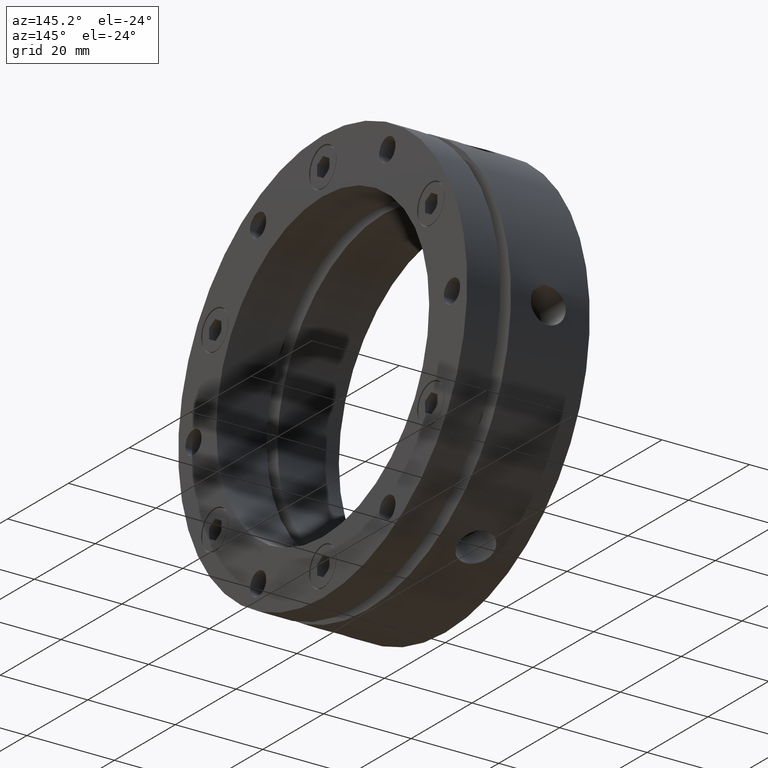
[diagram: clean part render]
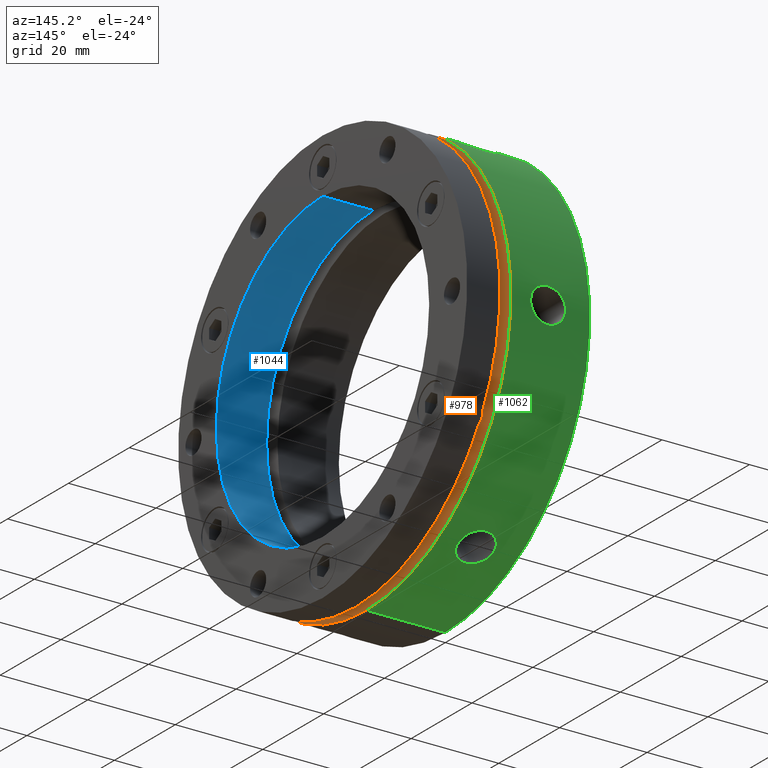
[diagram: same view with three faces highlighted in distinct colors, each labeled with its STEP entity id]
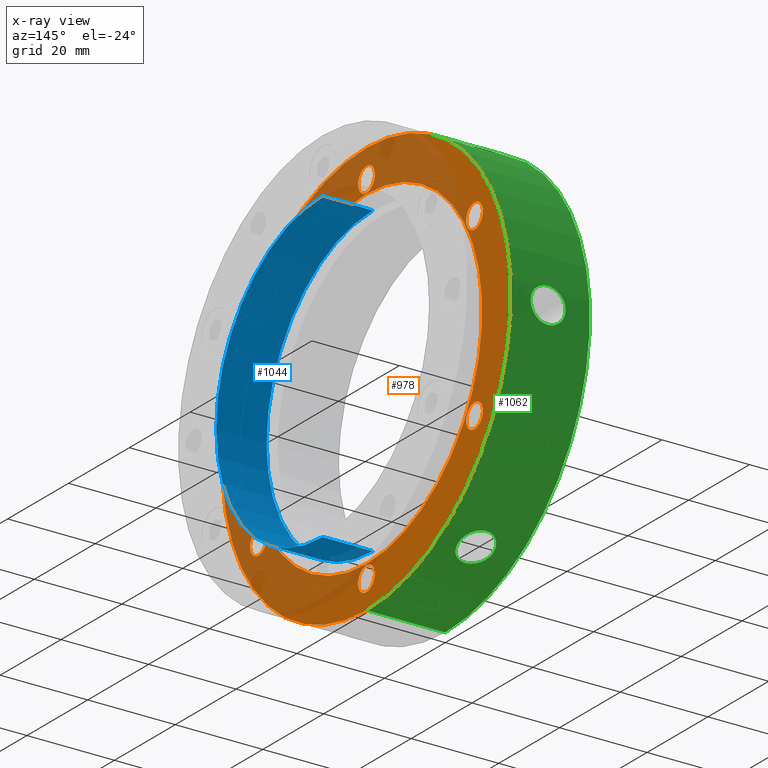
[diagram: x-ray of the same camera — body ghosted, the three highlighted faces saturated]
A machine part, auxiliary view with three faces highlighted in distinct colors.
The next image is the same camera in x-ray (body ghosted, the three faces saturated) — at least one of them is partly hidden behind the body in this view.
Their STEP definitions:

[orange] entity #978 — the highlighted planar face has unit normal (-1, 0, 0).
#38 = VERTEX_POINT ( 'NONE', #1382 ) ;
#66 = VERTEX_POINT ( 'NONE', #1390 ) ;
#86 = VERTEX_POINT ( 'NONE', #1411 ) ;
#109 = VERTEX_POINT ( 'NONE', #1425 ) ;
#114 = VERTEX_POINT ( 'NONE', #1433 ) ;
#121 = VERTEX_POINT ( 'NONE', #1442 ) ;
#158 = VERTEX_POINT ( 'NONE', #1468 ) ;
#159 = VERTEX_POINT ( 'NONE', #1469 ) ;
#184 = VERTEX_POINT ( 'NONE', #1493 ) ;
#188 = VERTEX_POINT ( 'NONE', #1497 ) ;
#218 = VERTEX_POINT ( 'NONE', #1526 ) ;
#248 = VERTEX_POINT ( 'NONE', #1553 ) ;
#250 = VERTEX_POINT ( 'NONE', #1555 ) ;
#253 = VERTEX_POINT ( 'NONE', #1550 ) ;
#262 = VERTEX_POINT ( 'NONE', #1566 ) ;
#268 = VERTEX_POINT ( 'NONE', #1571 ) ;
#338 = AXIS2_PLACEMENT_3D ( 'NONE', #2237, #2238, #2239 ) ;
#339 = AXIS2_PLACEMENT_3D ( 'NONE', #2228, #2229, #2230 ) ;
#402 = AXIS2_PLACEMENT_3D ( 'NONE', #3823, #3824, #3825 ) ;
#427 = AXIS2_PLACEMENT_3D ( 'NONE', #4002, #4003, #4004 ) ;
#430 = AXIS2_PLACEMENT_3D ( 'NONE', #4015, #4016, #4017 ) ;
#432 = AXIS2_PLACEMENT_3D ( 'NONE', #4055, #4056, #4057 ) ;
#434 = AXIS2_PLACEMENT_3D ( 'NONE', #4064, #4065, #4066 ) ;
#435 = AXIS2_PLACEMENT_3D ( 'NONE', #4102, #4103, #4104 ) ;
#436 = AXIS2_PLACEMENT_3D ( 'NONE', #4137, #4138, #4139 ) ;
#437 = AXIS2_PLACEMENT_3D ( 'NONE', #4141, #4142, #4143 ) ;
#472 = EDGE_CURVE ( 'NONE', #38, #159, #3421, .T. ) ;
#498 = EDGE_CURVE ( 'NONE', #253, #262, #2944, .T. ) ;
#504 = EDGE_CURVE ( 'NONE', #184, #188, #2951, .T. ) ;
#508 = EDGE_CURVE ( 'NONE', #250, #121, #2958, .T. ) ;
#512 = EDGE_CURVE ( 'NONE', #158, #86, #2963, .T. ) ;
#584 = EDGE_CURVE ( 'NONE', #268, #248, #3073, .T. ) ;
#588 = EDGE_CURVE ( 'NONE', #66, #114, #3082, .T. ) ;
#597 = ORIENTED_EDGE ( 'NONE', *, *, #4746, .F. ) ;
#817 = AXIS2_PLACEMENT_3D ( 'NONE', #2048, #2049, #2050 ) ;
#819 = AXIS2_PLACEMENT_3D ( 'NONE', #2037, #2038, #2039 ) ;
#821 = AXIS2_PLACEMENT_3D ( 'NONE', #2028, #2029, #2030 ) ;
#826 = AXIS2_PLACEMENT_3D ( 'NONE', #2015, #2016, #2017 ) ;
#838 = AXIS2_PLACEMENT_3D ( 'NONE', #2350, #2348, #2354 ) ;
#978 = ADVANCED_FACE ( 'NONE', ( #3148, #3156, #3152, #3150, #3154, #3157, #3158, #3159 ), #2352, .F. ) ;
#1382 = CARTESIAN_POINT ( 'NONE',  ( 17.99999999999999300, 35.50704155516203300, 23.24999999999998900 ) ) ;
#1390 = CARTESIAN_POINT ( 'NONE',  ( 17.99999999999999300, 35.50704155516199700, -17.75000000000003600 ) ) ;
#1411 = CARTESIAN_POINT ( 'NONE',  ( 17.99999999999999300, -35.50704155516201900, -23.25000000000000700 ) ) ;
#1425 = CARTESIAN_POINT ( 'NONE',  ( 17.99999999999999300, 5.817072295949928200E-015, 47.50000000000000000 ) ) ;
#1433 = CARTESIAN_POINT ( 'NONE',  ( 17.99999999999999300, 35.50704155516199700, -23.25000000000003600 ) ) ;
#1442 = CARTESIAN_POINT ( 'NONE',  ( 17.99999999999999300, -35.50704155516201200, 17.75000000000002100 ) ) ;
#1468 = CARTESIAN_POINT ( 'NONE',  ( 17.99999999999999300, -35.50704155516201900, -17.75000000000000700 ) ) ;
#1469 = CARTESIAN_POINT ( 'NONE',  ( 17.99999999999999300, 35.50704155516203300, 17.74999999999999300 ) ) ;
#1493 = CARTESIAN_POINT ( 'NONE',  ( 17.99999999999999300, 3.367778697655217600E-016, 43.75000000000002800 ) ) ;
#1497 = CARTESIAN_POINT ( 'NONE',  ( 17.99999999999999300, 0.0000000000000000000, 38.25000000000002800 ) ) ;
#1526 = CARTESIAN_POINT ( 'NONE',  ( 17.99999999999999300, 0.0000000000000000000, -47.50000000000000000 ) ) ;
#1550 = CARTESIAN_POINT ( 'NONE',  ( 17.99999999999999300, 4.653657836759942700E-015, -38.00000000000000700 ) ) ;
#1553 = CARTESIAN_POINT ( 'NONE',  ( 17.99999999999999300, -6.661337999999999900E-015, -43.75000000000002800 ) ) ;
#1555 = CARTESIAN_POINT ( 'NONE',  ( 17.99999999999999300, -35.50704155516201200, 23.25000000000002100 ) ) ;
#1566 = CARTESIAN_POINT ( 'NONE',  ( 17.99999999999999300, 0.0000000000000000000, 38.00000000000000700 ) ) ;
#1571 = CARTESIAN_POINT ( 'NONE',  ( 17.99999999999999300, -6.324560130234478200E-015, -38.25000000000002800 ) ) ;
#1595 = CARTESIAN_POINT ( 'NONE',  ( 17.99999999999999300, 35.50704155516203300, 20.49999999999998900 ) ) ;
#1596 = DIRECTION ( 'NONE',  ( 1.000000000000000000, 0.0000000000000000000, 0.0000000000000000000 ) ) ;
#1597 = DIRECTION ( 'NONE',  ( 0.0000000000000000000, 0.0000000000000000000, -1.000000000000000000 ) ) ;
#1784 = CIRCLE ( 'NONE', #1901, 47.50000000000000000 ) ;
#1901 = AXIS2_PLACEMENT_3D ( 'NONE', #2806, #2807, #2808 ) ;
#2015 = CARTESIAN_POINT ( 'NONE',  ( 17.99999999999999300, 0.0000000000000000000, 0.0000000000000000000 ) ) ;
#2016 = DIRECTION ( 'NONE',  ( 1.000000000000000000, -0.0000000000000000000, -0.0000000000000000000 ) ) ;
#2017 = DIRECTION ( 'NONE',  ( 0.0000000000000000000, 0.0000000000000000000, 1.000000000000000000 ) ) ;
#2028 = CARTESIAN_POINT ( 'NONE',  ( 17.99999999999999300, 0.0000000000000000000, 41.00000000000002800 ) ) ;
#2029 = DIRECTION ( 'NONE',  ( 1.000000000000000000, 0.0000000000000000000, 0.0000000000000000000 ) ) ;
#2030 = DIRECTION ( 'NONE',  ( 0.0000000000000000000, 0.0000000000000000000, -1.000000000000000000 ) ) ;
#2037 = CARTESIAN_POINT ( 'NONE',  ( 17.99999999999999300, -35.50704155516201200, 20.50000000000002100 ) ) ;
#2038 = DIRECTION ( 'NONE',  ( 1.000000000000000000, 0.0000000000000000000, 0.0000000000000000000 ) ) ;
#2039 = DIRECTION ( 'NONE',  ( 0.0000000000000000000, 0.0000000000000000000, -1.000000000000000000 ) ) ;
#2048 = CARTESIAN_POINT ( 'NONE',  ( 17.99999999999999300, -35.50704155516201900, -20.50000000000000700 ) ) ;
#2049 = DIRECTION ( 'NONE',  ( 1.000000000000000000, 0.0000000000000000000, 0.0000000000000000000 ) ) ;
#2050 = DIRECTION ( 'NONE',  ( 0.0000000000000000000, 0.0000000000000000000, -1.000000000000000000 ) ) ;
#2228 = CARTESIAN_POINT ( 'NONE',  ( 17.99999999999999300, -6.661337999999999900E-015, -41.00000000000002800 ) ) ;
#2229 = DIRECTION ( 'NONE',  ( 1.000000000000000000, 0.0000000000000000000, 0.0000000000000000000 ) ) ;
#2230 = DIRECTION ( 'NONE',  ( 0.0000000000000000000, 0.0000000000000000000, -1.000000000000000000 ) ) ;
#2237 = CARTESIAN_POINT ( 'NONE',  ( 17.99999999999999300, 35.50704155516199700, -20.50000000000003600 ) ) ;
#2238 = DIRECTION ( 'NONE',  ( 1.000000000000000000, 0.0000000000000000000, 0.0000000000000000000 ) ) ;
#2239 = DIRECTION ( 'NONE',  ( 0.0000000000000000000, 0.0000000000000000000, -1.000000000000000000 ) ) ;
#2348 = DIRECTION ( 'NONE',  ( -1.000000000000000000, 0.0000000000000000000, 0.0000000000000000000 ) ) ;
#2350 = CARTESIAN_POINT ( 'NONE',  ( 17.99999999999999300, 42.75000000000000000, 0.0000000000000000000 ) ) ;
#2352 = PLANE ( 'NONE',  #838 ) ;
#2354 = DIRECTION ( 'NONE',  ( 0.0000000000000000000, 0.0000000000000000000, 1.000000000000000000 ) ) ;
#2806 = CARTESIAN_POINT ( 'NONE',  ( 17.99999999999999300, 0.0000000000000000000, 0.0000000000000000000 ) ) ;
#2807 = DIRECTION ( 'NONE',  ( -1.000000000000000000, -0.0000000000000000000, -0.0000000000000000000 ) ) ;
#2808 = DIRECTION ( 'NONE',  ( 0.0000000000000000000, 0.0000000000000000000, -1.000000000000000000 ) ) ;
#2944 = CIRCLE ( 'NONE', #826, 38.00000000000000700 ) ;
#2951 = CIRCLE ( 'NONE', #821, 2.750000000000002700 ) ;
#2958 = CIRCLE ( 'NONE', #819, 2.749999999999999100 ) ;
#2963 = CIRCLE ( 'NONE', #817, 2.749999999999999100 ) ;
#3073 = CIRCLE ( 'NONE', #339, 2.750000000000002700 ) ;
#3082 = CIRCLE ( 'NONE', #338, 2.749999999999999100 ) ;
#3148 = FACE_BOUND ( 'NONE', #3350, .T. ) ;
#3150 = FACE_BOUND ( 'NONE', #3349, .T. ) ;
#3152 = FACE_BOUND ( 'NONE', #3363, .T. ) ;
#3154 = FACE_BOUND ( 'NONE', #3370, .T. ) ;
#3156 = FACE_BOUND ( 'NONE', #3362, .T. ) ;
#3157 = FACE_BOUND ( 'NONE', #3371, .T. ) ;
#3158 = FACE_BOUND ( 'NONE', #3372, .T. ) ;
#3159 = FACE_OUTER_BOUND ( 'NONE', #3373, .T. ) ;
#3349 = EDGE_LOOP ( 'NONE', ( #4602, #4557 ) ) ;
#3350 = EDGE_LOOP ( 'NONE', ( #597, #4593 ) ) ;
#3362 = EDGE_LOOP ( 'NONE', ( #4601, #4538 ) ) ;
#3363 = EDGE_LOOP ( 'NONE', ( #4554, #4550 ) ) ;
#3370 = EDGE_LOOP ( 'NONE', ( #4579, #4549 ) ) ;
#3371 = EDGE_LOOP ( 'NONE', ( #4541, #4598 ) ) ;
#3372 = EDGE_LOOP ( 'NONE', ( #4546, #4547 ) ) ;
#3373 = EDGE_LOOP ( 'NONE', ( #4543, #4548 ) ) ;
#3421 = CIRCLE ( 'NONE', #4673, 2.749999999999999100 ) ;
#3468 = EDGE_CURVE ( 'NONE', #218, #109, #1784, .T. ) ;
#3823 = CARTESIAN_POINT ( 'NONE',  ( 17.99999999999999300, 0.0000000000000000000, 0.0000000000000000000 ) ) ;
#3824 = DIRECTION ( 'NONE',  ( -1.000000000000000000, -0.0000000000000000000, -0.0000000000000000000 ) ) ;
#3825 = DIRECTION ( 'NONE',  ( 0.0000000000000000000, 0.0000000000000000000, -1.000000000000000000 ) ) ;
#4002 = CARTESIAN_POINT ( 'NONE',  ( 17.99999999999999300, 35.50704155516203300, 20.49999999999998900 ) ) ;
#4003 = DIRECTION ( 'NONE',  ( 1.000000000000000000, 0.0000000000000000000, 0.0000000000000000000 ) ) ;
#4004 = DIRECTION ( 'NONE',  ( 0.0000000000000000000, 0.0000000000000000000, -1.000000000000000000 ) ) ;
#4015 = CARTESIAN_POINT ( 'NONE',  ( 17.99999999999999300, 35.50704155516199700, -20.50000000000003600 ) ) ;
#4016 = DIRECTION ( 'NONE',  ( 1.000000000000000000, 0.0000000000000000000, 0.0000000000000000000 ) ) ;
#4017 = DIRECTION ( 'NONE',  ( 0.0000000000000000000, 0.0000000000000000000, -1.000000000000000000 ) ) ;
#4055 = CARTESIAN_POINT ( 'NONE',  ( 17.99999999999999300, 0.0000000000000000000, 41.00000000000002800 ) ) ;
#4056 = DIRECTION ( 'NONE',  ( 1.000000000000000000, 0.0000000000000000000, 0.0000000000000000000 ) ) ;
#4057 = DIRECTION ( 'NONE',  ( 0.0000000000000000000, 0.0000000000000000000, -1.000000000000000000 ) ) ;
#4064 = CARTESIAN_POINT ( 'NONE',  ( 17.99999999999999300, 0.0000000000000000000, 0.0000000000000000000 ) ) ;
#4065 = DIRECTION ( 'NONE',  ( 1.000000000000000000, -0.0000000000000000000, -0.0000000000000000000 ) ) ;
#4066 = DIRECTION ( 'NONE',  ( 0.0000000000000000000, 0.0000000000000000000, 1.000000000000000000 ) ) ;
#4102 = CARTESIAN_POINT ( 'NONE',  ( 17.99999999999999300, -6.661337999999999900E-015, -41.00000000000002800 ) ) ;
#4103 = DIRECTION ( 'NONE',  ( 1.000000000000000000, 0.0000000000000000000, 0.0000000000000000000 ) ) ;
#4104 = DIRECTION ( 'NONE',  ( 0.0000000000000000000, 0.0000000000000000000, -1.000000000000000000 ) ) ;
#4137 = CARTESIAN_POINT ( 'NONE',  ( 17.99999999999999300, -35.50704155516201200, 20.50000000000002100 ) ) ;
#4138 = DIRECTION ( 'NONE',  ( 1.000000000000000000, 0.0000000000000000000, 0.0000000000000000000 ) ) ;
#4139 = DIRECTION ( 'NONE',  ( 0.0000000000000000000, 0.0000000000000000000, -1.000000000000000000 ) ) ;
#4141 = CARTESIAN_POINT ( 'NONE',  ( 17.99999999999999300, -35.50704155516201900, -20.50000000000000700 ) ) ;
#4142 = DIRECTION ( 'NONE',  ( 1.000000000000000000, 0.0000000000000000000, 0.0000000000000000000 ) ) ;
#4143 = DIRECTION ( 'NONE',  ( 0.0000000000000000000, 0.0000000000000000000, -1.000000000000000000 ) ) ;
#4335 = CIRCLE ( 'NONE', #402, 47.50000000000000000 ) ;
#4353 = CIRCLE ( 'NONE', #432, 2.750000000000002700 ) ;
#4362 = CIRCLE ( 'NONE', #427, 2.749999999999999100 ) ;
#4365 = CIRCLE ( 'NONE', #430, 2.749999999999999100 ) ;
#4372 = CIRCLE ( 'NONE', #434, 38.00000000000000700 ) ;
#4374 = CIRCLE ( 'NONE', #435, 2.750000000000002700 ) ;
#4375 = CIRCLE ( 'NONE', #437, 2.749999999999999100 ) ;
#4377 = CIRCLE ( 'NONE', #436, 2.749999999999999100 ) ;
#4538 = ORIENTED_EDGE ( 'NONE', *, *, #504, .F. ) ;
#4541 = ORIENTED_EDGE ( 'NONE', *, *, #4739, .F. ) ;
#4543 = ORIENTED_EDGE ( 'NONE', *, *, #3468, .F. ) ;
#4546 = ORIENTED_EDGE ( 'NONE', *, *, #4736, .F. ) ;
#4547 = ORIENTED_EDGE ( 'NONE', *, *, #472, .F. ) ;
#4548 = ORIENTED_EDGE ( 'NONE', *, *, #4707, .F. ) ;
#4549 = ORIENTED_EDGE ( 'NONE', *, *, #584, .F. ) ;
#4550 = ORIENTED_EDGE ( 'NONE', *, *, #508, .F. ) ;
#4554 = ORIENTED_EDGE ( 'NONE', *, *, #4751, .F. ) ;
#4557 = ORIENTED_EDGE ( 'NONE', *, *, #512, .F. ) ;
#4579 = ORIENTED_EDGE ( 'NONE', *, *, #4748, .F. ) ;
#4593 = ORIENTED_EDGE ( 'NONE', *, *, #498, .F. ) ;
#4598 = ORIENTED_EDGE ( 'NONE', *, *, #588, .F. ) ;
#4601 = ORIENTED_EDGE ( 'NONE', *, *, #4743, .F. ) ;
#4602 = ORIENTED_EDGE ( 'NONE', *, *, #4752, .F. ) ;
#4673 = AXIS2_PLACEMENT_3D ( 'NONE', #1595, #1596, #1597 ) ;
#4707 = EDGE_CURVE ( 'NONE', #109, #218, #4335, .T. ) ;
#4736 = EDGE_CURVE ( 'NONE', #159, #38, #4362, .T. ) ;
#4739 = EDGE_CURVE ( 'NONE', #114, #66, #4365, .T. ) ;
#4743 = EDGE_CURVE ( 'NONE', #188, #184, #4353, .T. ) ;
#4746 = EDGE_CURVE ( 'NONE', #262, #253, #4372, .T. ) ;
#4748 = EDGE_CURVE ( 'NONE', #248, #268, #4374, .T. ) ;
#4751 = EDGE_CURVE ( 'NONE', #121, #250, #4377, .T. ) ;
#4752 = EDGE_CURVE ( 'NONE', #86, #158, #4375, .T. ) ;

[blue] entity #1044 — the highlighted cylindrical surface (partial cylindrical patch) has radius 35 mm, axis along (1, 0, 0).
#9 = EDGE_LOOP ( 'NONE', ( #1286, #1285, #1284, #1281 ) ) ;
#80 = VERTEX_POINT ( 'NONE', #1407 ) ;
#99 = VERTEX_POINT ( 'NONE', #1424 ) ;
#130 = VERTEX_POINT ( 'NONE', #1449 ) ;
#137 = VERTEX_POINT ( 'NONE', #1454 ) ;
#345 = AXIS2_PLACEMENT_3D ( 'NONE', #2192, #2193, #2194 ) ;
#346 = AXIS2_PLACEMENT_3D ( 'NONE', #2188, #2189, #2190 ) ;
#566 = EDGE_CURVE ( 'NONE', #137, #80, #3045, .T. ) ;
#568 = EDGE_CURVE ( 'NONE', #80, #130, #3050, .T. ) ;
#569 = EDGE_CURVE ( 'NONE', #99, #130, #3048, .T. ) ;
#570 = EDGE_CURVE ( 'NONE', #137, #99, #3052, .T. ) ;
#907 = AXIS2_PLACEMENT_3D ( 'NONE', #2557, #2555, #2553 ) ;
#1044 = ADVANCED_FACE ( 'NONE', ( #1671 ), #1675, .F. ) ;
#1281 = ORIENTED_EDGE ( 'NONE', *, *, #566, .F. ) ;
#1284 = ORIENTED_EDGE ( 'NONE', *, *, #568, .F. ) ;
#1285 = ORIENTED_EDGE ( 'NONE', *, *, #569, .T. ) ;
#1286 = ORIENTED_EDGE ( 'NONE', *, *, #570, .T. ) ;
#1407 = CARTESIAN_POINT ( 'NONE',  ( 27.99999999999999300, 0.0000000000000000000, -35.00000000000000000 ) ) ;
#1424 = CARTESIAN_POINT ( 'NONE',  ( 16.50000000000000000, 4.286263797015736500E-015, 35.00000000000000000 ) ) ;
#1449 = CARTESIAN_POINT ( 'NONE',  ( 27.99999999999999300, 4.286263797015736500E-015, 35.00000000000000000 ) ) ;
#1454 = CARTESIAN_POINT ( 'NONE',  ( 16.50000000000000000, 0.0000000000000000000, -35.00000000000000000 ) ) ;
#1671 = FACE_OUTER_BOUND ( 'NONE', #9, .T. ) ;
#1675 = CYLINDRICAL_SURFACE ( 'NONE', #907, 35.00000000000000000 ) ;
#2178 = DIRECTION ( 'NONE',  ( 1.000000000000000000, 0.0000000000000000000, 0.0000000000000000000 ) ) ;
#2180 = CARTESIAN_POINT ( 'NONE',  ( 13.99999999999999300, 0.0000000000000000000, -35.00000000000000000 ) ) ;
#2184 = DIRECTION ( 'NONE',  ( 1.000000000000000000, 0.0000000000000000000, 0.0000000000000000000 ) ) ;
#2187 = CARTESIAN_POINT ( 'NONE',  ( 13.99999999999999300, 4.286263797015736500E-015, 35.00000000000000000 ) ) ;
#2188 = CARTESIAN_POINT ( 'NONE',  ( 27.99999999999999300, 0.0000000000000000000, 0.0000000000000000000 ) ) ;
#2189 = DIRECTION ( 'NONE',  ( -1.000000000000000000, -0.0000000000000000000, -0.0000000000000000000 ) ) ;
#2190 = DIRECTION ( 'NONE',  ( 0.0000000000000000000, 0.0000000000000000000, -1.000000000000000000 ) ) ;
#2192 = CARTESIAN_POINT ( 'NONE',  ( 16.50000000000000000, 0.0000000000000000000, 0.0000000000000000000 ) ) ;
#2193 = DIRECTION ( 'NONE',  ( -1.000000000000000000, -0.0000000000000000000, -0.0000000000000000000 ) ) ;
#2194 = DIRECTION ( 'NONE',  ( 0.0000000000000000000, 0.0000000000000000000, -1.000000000000000000 ) ) ;
#2553 = DIRECTION ( 'NONE',  ( 0.0000000000000000000, 0.0000000000000000000, -1.000000000000000000 ) ) ;
#2555 = DIRECTION ( 'NONE',  ( 1.000000000000000000, 0.0000000000000000000, 0.0000000000000000000 ) ) ;
#2557 = CARTESIAN_POINT ( 'NONE',  ( 13.99999999999999300, 0.0000000000000000000, 0.0000000000000000000 ) ) ;
#3045 = LINE ( 'NONE', #2180, #3049 ) ;
#3048 = LINE ( 'NONE', #2187, #3054 ) ;
#3049 = VECTOR ( 'NONE', #2178, 1000.000000000000000 ) ;
#3050 = CIRCLE ( 'NONE', #346, 35.00000000000000000 ) ;
#3052 = CIRCLE ( 'NONE', #345, 35.00000000000000000 ) ;
#3054 = VECTOR ( 'NONE', #2184, 1000.000000000000000 ) ;

[green] entity #1062 — the highlighted cylindrical surface (partial cylindrical patch) has radius 47.5 mm, axis along (1, 0, 0).
#51 = ORIENTED_EDGE ( 'NONE', *, *, #4742, .T. ) ;
#54 = VERTEX_POINT ( 'NONE', #1385 ) ;
#63 = VERTEX_POINT ( 'NONE', #1393 ) ;
#84 = VERTEX_POINT ( 'NONE', #1410 ) ;
#107 = VERTEX_POINT ( 'NONE', #1432 ) ;
#109 = VERTEX_POINT ( 'NONE', #1425 ) ;
#139 = ORIENTED_EDGE ( 'NONE', *, *, #4724, .T. ) ;
#143 = ORIENTED_EDGE ( 'NONE', *, *, #4604, .F. ) ;
#156 = ORIENTED_EDGE ( 'NONE', *, *, #4707, .T. ) ;
#185 = VERTEX_POINT ( 'NONE', #1494 ) ;
#198 = ORIENTED_EDGE ( 'NONE', *, *, #4749, .T. ) ;
#214 = VERTEX_POINT ( 'NONE', #1522 ) ;
#217 = ORIENTED_EDGE ( 'NONE', *, *, #4708, .T. ) ;
#218 = VERTEX_POINT ( 'NONE', #1526 ) ;
#220 = ORIENTED_EDGE ( 'NONE', *, *, #4725, .T. ) ;
#224 = VERTEX_POINT ( 'NONE', #1525 ) ;
#225 = ORIENTED_EDGE ( 'NONE', *, *, #4750, .T. ) ;
#237 = VERTEX_POINT ( 'NONE', #1542 ) ;
#245 = ORIENTED_EDGE ( 'NONE', *, *, #4726, .T. ) ;
#259 = ORIENTED_EDGE ( 'NONE', *, *, #4747, .T. ) ;
#304 = EDGE_LOOP ( 'NONE', ( #51, #225 ) ) ;
#306 = EDGE_LOOP ( 'NONE', ( #217, #198, #156, #143 ) ) ;
#316 = EDGE_LOOP ( 'NONE', ( #139, #259 ) ) ;
#317 = EDGE_LOOP ( 'NONE', ( #245, #220 ) ) ;
#402 = AXIS2_PLACEMENT_3D ( 'NONE', #3823, #3824, #3825 ) ;
#403 = AXIS2_PLACEMENT_3D ( 'NONE', #3826, #3827, #3828 ) ;
#926 = AXIS2_PLACEMENT_3D ( 'NONE', #2610, #2611, #2609 ) ;
#1062 = ADVANCED_FACE ( 'NONE', ( #1707, #1715, #1711, #1709 ), #1719, .T. ) ;
#1090 = B_SPLINE_CURVE_WITH_KNOTS ( 'NONE', 3,
 ( #3877, #3910, #3943, #3944, #3945, #3946, #3947, #3948, #3949, #3950, #3951, #3952, #3953, #3954, #3955, #3956, #3957, #3958, #3959, #3960, #3961, #3962, #3963, #3964, #3965, #3966, #3967, #3968, #3969, #3970, #3971, #3972, #3973, #3974 ),
 .UNSPECIFIED., .F., .F.,
 ( 4, 2, 2, 2, 2, 2, 2, 2, 2, 2, 2, 2, 2, 2, 2, 2, 4 ),
 ( 0.01876578023979333000, 0.01954757151326307100, 0.02032936278673280700, 0.02111115406020255100, 0.02189294533367229200, 0.02267473660714203200, 0.02345652788061177600, 0.02423831915408151600, 0.02502011042755126000, 0.02580190170102100000, 0.02658369297449074400, 0.02736548424796048400, 0.02814727552143022500, 0.02892906679489996900, 0.02971085806836971200, 0.03049264934183945300, 0.03127444061530919300 ),
 .UNSPECIFIED. ) ;
#1091 = B_SPLINE_CURVE_WITH_KNOTS ( 'NONE', 3,
 ( #3872, #3873, #3878, #3879, #3880, #3881, #3882, #3883, #3884, #3885, #3886, #3887, #3888, #3889, #3890, #3891, #3892, #3893, #3894, #3895, #3896, #3897, #3898, #3899, #3900, #3901, #3902, #3903, #3904, #3905, #3906, #3907, #3908, #3909 ),
 .UNSPECIFIED., .F., .F.,
 ( 4, 2, 2, 2, 2, 2, 2, 2, 2, 2, 2, 2, 2, 2, 2, 2, 4 ),
 ( 0.01876578023979335100, 0.01954757151326309500, 0.02032936278673283900, 0.02111115406020258300, 0.02189294533367232300, 0.02267473660714206700, 0.02345652788061181000, 0.02423831915408155100, 0.02502011042755129100, 0.02580190170102103500, 0.02658369297449077500, 0.02736548424796051600, 0.02814727552143025900, 0.02892906679490000300, 0.02971085806836974400, 0.03049264934183948400, 0.03127444061530922800 ),
 .UNSPECIFIED. ) ;
#1096 = B_SPLINE_CURVE_WITH_KNOTS ( 'NONE', 3,
 ( #4018, #4019, #4023, #4024, #4025, #4026, #4027, #4028, #4029, #4030, #4031, #4032, #4033, #4034, #4035, #4036, #4037, #4038, #4039, #4040, #4041, #4042, #4043, #4044, #4045, #4046, #4047, #4048, #4049, #4050, #4051, #4052, #4053, #4054 ),
 .UNSPECIFIED., .F., .F.,
 ( 4, 2, 2, 2, 2, 2, 2, 2, 2, 2, 2, 2, 2, 2, 2, 2, 4 ),
 ( 0.01876578023979334100, 0.01954757151326307800, 0.02032936278673281800, 0.02111115406020255800, 0.02189294533367229900, 0.02267473660714203900, 0.02345652788061177900, 0.02423831915408152000, 0.02502011042755126300, 0.02580190170102100400, 0.02658369297449074400, 0.02736548424796048800, 0.02814727552143022500, 0.02892906679489996900, 0.02971085806836970500, 0.03049264934183945300, 0.03127444061530920000 ),
 .UNSPECIFIED. ) ;
#1102 = B_SPLINE_CURVE_WITH_KNOTS ( 'NONE', 3,
 ( #3867, #3868, #3911, #3912, #3913, #3914, #3915, #3916, #3917, #3918, #3919, #3920, #3921, #3922, #3923, #3924, #3925, #3926, #3927, #3928, #3929, #3930, #3931, #3932, #3933, #3934, #3935, #3936, #3937, #3938, #3939, #3940, #3941, #3942 ),
 .UNSPECIFIED., .F., .F.,
 ( 4, 2, 2, 2, 2, 2, 2, 2, 2, 2, 2, 2, 2, 2, 2, 2, 4 ),
 ( 0.006257119855999901400, 0.007038911129986990900, 0.007820702403974080400, 0.008602493677961169100, 0.009384284951948259500, 0.01016607622593534800, 0.01094786749992243700, 0.01172965877390952700, 0.01251145004789661600, 0.01329324132188370400, 0.01407503259587079500, 0.01485682386985788400, 0.01563861514384497200, 0.01642040641783206300, 0.01720219769181915300, 0.01798398896580624000, 0.01876578023979333000 ),
 .UNSPECIFIED. ) ;
#1103 = B_SPLINE_CURVE_WITH_KNOTS ( 'NONE', 3,
 ( #4100, #4101, #4105, #4106, #4107, #4108, #4109, #4110, #4111, #4112, #4113, #4114, #4115, #4116, #4117, #4118, #4119, #4120, #4121, #4122, #4123, #4124, #4125, #4126, #4127, #4128, #4129, #4130, #4131, #4132, #4133, #4134, #4135, #4136 ),
 .UNSPECIFIED., .F., .F.,
 ( 4, 2, 2, 2, 2, 2, 2, 2, 2, 2, 2, 2, 2, 2, 2, 2, 4 ),
 ( 0.006257119855999917900, 0.007038911129987006500, 0.007820702403974096100, 0.008602493677961184700, 0.009384284951948273400, 0.01016607622593536200, 0.01094786749992245100, 0.01172965877390954100, 0.01251145004789662800, 0.01329324132188371800, 0.01407503259587080500, 0.01485682386985789600, 0.01563861514384498600, 0.01642040641783207300, 0.01720219769181916300, 0.01798398896580625000, 0.01876578023979334100 ),
 .UNSPECIFIED. ) ;
#1106 = B_SPLINE_CURVE_WITH_KNOTS ( 'NONE', 3,
 ( #4062, #4063, #4068, #4069, #4070, #4071, #4072, #4073, #4074, #4075, #4076, #4077, #4078, #4079, #4080, #4081, #4082, #4083, #4084, #4085, #4086, #4087, #4088, #4089, #4090, #4091, #4092, #4093, #4094, #4095, #4096, #4097, #4098, #4099 ),
 .UNSPECIFIED., .F., .F.,
 ( 4, 2, 2, 2, 2, 2, 2, 2, 2, 2, 2, 2, 2, 2, 2, 2, 4 ),
 ( 0.006257119855999905700, 0.007038911129986995300, 0.007820702403974085600, 0.008602493677961174300, 0.009384284951948263000, 0.01016607622593535300, 0.01094786749992244400, 0.01172965877390953400, 0.01251145004789662500, 0.01329324132188371500, 0.01407503259587080500, 0.01485682386985789600, 0.01563861514384498600, 0.01642040641783207600, 0.01720219769181916700, 0.01798398896580626100, 0.01876578023979335100 ),
 .UNSPECIFIED. ) ;
#1385 = CARTESIAN_POINT ( 'NONE',  ( -1.387778780781445700E-014, 0.0000000000000000000, -47.50000000000000000 ) ) ;
#1393 = CARTESIAN_POINT ( 'NONE',  ( 9.499999999999989300, 20.20153803394002200, 42.99009026581911300 ) ) ;
#1410 = CARTESIAN_POINT ( 'NONE',  ( 9.499999999999989300, 20.20153803393996500, -42.99009026581913400 ) ) ;
#1425 = CARTESIAN_POINT ( 'NONE',  ( 17.99999999999999300, 5.817072295949928200E-015, 47.50000000000000000 ) ) ;
#1432 = CARTESIAN_POINT ( 'NONE',  ( 9.499999999999989300, 27.12974126421552500, 38.99009026581909200 ) ) ;
#1494 = CARTESIAN_POINT ( 'NONE',  ( 9.499999999999989300, 27.12974126421547500, -38.99009026581912700 ) ) ;
#1522 = CARTESIAN_POINT ( 'NONE',  ( 9.499999999999989300, 47.33127929815546500, -4.000000000000029300 ) ) ;
#1525 = CARTESIAN_POINT ( 'NONE',  ( 9.499999999999989300, 47.33127929815547200, 3.999999999999970700 ) ) ;
#1526 = CARTESIAN_POINT ( 'NONE',  ( 17.99999999999999300, 0.0000000000000000000, -47.50000000000000000 ) ) ;
#1542 = CARTESIAN_POINT ( 'NONE',  ( -1.387778780781445700E-014, 5.817072295949928200E-015, 47.50000000000000000 ) ) ;
#1707 = FACE_BOUND ( 'NONE', #304, .T. ) ;
#1709 = FACE_OUTER_BOUND ( 'NONE', #306, .T. ) ;
#1711 = FACE_BOUND ( 'NONE', #317, .T. ) ;
#1715 = FACE_BOUND ( 'NONE', #316, .T. ) ;
#1719 = CYLINDRICAL_SURFACE ( 'NONE', #926, 47.50000000000000000 ) ;
#1827 = LINE ( 'NONE', #2893, #1830 ) ;
#1830 = VECTOR ( 'NONE', #2906, 1000.000000000000000 ) ;
#2609 = DIRECTION ( 'NONE',  ( 0.0000000000000000000, 0.0000000000000000000, -1.000000000000000000 ) ) ;
#2610 = CARTESIAN_POINT ( 'NONE',  ( 13.99999999999998800, 0.0000000000000000000, 0.0000000000000000000 ) ) ;
#2611 = DIRECTION ( 'NONE',  ( 1.000000000000000000, 0.0000000000000000000, 0.0000000000000000000 ) ) ;
#2893 = CARTESIAN_POINT ( 'NONE',  ( 13.99999999999998800, 0.0000000000000000000, -47.50000000000000000 ) ) ;
#2906 = DIRECTION ( 'NONE',  ( 1.000000000000000000, 0.0000000000000000000, 0.0000000000000000000 ) ) ;
#3823 = CARTESIAN_POINT ( 'NONE',  ( 17.99999999999999300, 0.0000000000000000000, 0.0000000000000000000 ) ) ;
#3824 = DIRECTION ( 'NONE',  ( -1.000000000000000000, -0.0000000000000000000, -0.0000000000000000000 ) ) ;
#3825 = DIRECTION ( 'NONE',  ( 0.0000000000000000000, 0.0000000000000000000, -1.000000000000000000 ) ) ;
#3826 = CARTESIAN_POINT ( 'NONE',  ( -1.387778780781445700E-014, 0.0000000000000000000, 0.0000000000000000000 ) ) ;
#3827 = DIRECTION ( 'NONE',  ( 1.000000000000000000, 0.0000000000000000000, 0.0000000000000000000 ) ) ;
#3828 = DIRECTION ( 'NONE',  ( 0.0000000000000000000, 0.0000000000000000000, -1.000000000000000000 ) ) ;
#3867 = CARTESIAN_POINT ( 'NONE',  ( 9.499999999999989300, 20.20153803393996500, -42.99009026581913400 ) ) ;
#3868 = CARTESIAN_POINT ( 'NONE',  ( 9.760971475047597300, 20.20153803393997200, -42.99009026581914100 ) ) ;
#3872 = CARTESIAN_POINT ( 'NONE',  ( 9.499999999999989300, 47.33127929815547200, 3.999999999999970700 ) ) ;
#3873 = CARTESIAN_POINT ( 'NONE',  ( 9.239028911663245600, 47.33127929815547900, 3.999999999999970700 ) ) ;
#3877 = CARTESIAN_POINT ( 'NONE',  ( 9.499999999999989300, 27.12974126421547500, -38.99009026581912700 ) ) ;
#3878 = CARTESIAN_POINT ( 'NONE',  ( 8.973948294362530800, 47.33350783953793700, 3.973873614139432900 ) ) ;
#3879 = CARTESIAN_POINT ( 'NONE',  ( 8.460980543964387500, 47.34198765819422100, 3.871542388782170300 ) ) ;
#3880 = CARTESIAN_POINT ( 'NONE',  ( 8.211645535757146100, 47.34819196927619300, 3.795897156875395000 ) ) ;
#3881 = CARTESIAN_POINT ( 'NONE',  ( 7.727349294091219200, 47.36384397469291900, 3.595330572555230900 ) ) ;
#3882 = CARTESIAN_POINT ( 'NONE',  ( 7.493346229924165800, 47.37330318215950300, 3.470045782416533600 ) ) ;
#3883 = CARTESIAN_POINT ( 'NONE',  ( 7.060180061226565100, 47.39362738142627800, 3.180433264728241800 ) ) ;
#3884 = CARTESIAN_POINT ( 'NONE',  ( 6.858246142036366100, 47.40457919972386900, 3.015104448520660200 ) ) ;
#3885 = CARTESIAN_POINT ( 'NONE',  ( 6.484838143995224500, 47.42685385596153200, 2.641688335827804000 ) ) ;
#3886 = CARTESIAN_POINT ( 'NONE',  ( 6.319411652311657700, 47.43780441136492200, 2.439612626947052800 ) ) ;
#3887 = CARTESIAN_POINT ( 'NONE',  ( 6.029875421132857100, 47.45809635590453000, 2.006511254429570900 ) ) ;
#3888 = CARTESIAN_POINT ( 'NONE',  ( 5.904671738956793100, 47.46752976718406800, 1.772671659705183000 ) ) ;
#3889 = CARTESIAN_POINT ( 'NONE',  ( 5.704031855840905300, 47.48314828489493100, 1.288167677869330700 ) ) ;
#3890 = CARTESIAN_POINT ( 'NONE',  ( 5.628418660750589300, 47.48933085519687600, 1.038839140084858700 ) ) ;
#3891 = CARTESIAN_POINT ( 'NONE',  ( 5.526147840892645200, 47.49777788476396300, 0.5261443176110216500 ) ) ;
#3892 = CARTESIAN_POINT ( 'NONE',  ( 5.499814006007953900, 47.50001566264806000, 0.2614964470729347300 ) ) ;
#3893 = CARTESIAN_POINT ( 'NONE',  ( 5.500187995876750300, 47.49998416877219400, -0.2671559657456734600 ) ) ;
#3894 = CARTESIAN_POINT ( 'NONE',  ( 5.526314746948723500, 47.49776406022398600, -0.5270432647654016400 ) ) ;
#3895 = CARTESIAN_POINT ( 'NONE',  ( 5.628324874620856700, 47.48933864044504800, -1.038306706504483100 ) ) ;
#3896 = CARTESIAN_POINT ( 'NONE',  ( 5.705458313430527900, 47.48303378666790300, -1.292346593685719000 ) ) ;
#3897 = CARTESIAN_POINT ( 'NONE',  ( 5.906557640547392300, 47.46738647709015200, -1.776479197349710500 ) ) ;
#3898 = CARTESIAN_POINT ( 'NONE',  ( 6.029560090688917700, 47.45811789807122900, -2.006078278839668300 ) ) ;
#3899 = CARTESIAN_POINT ( 'NONE',  ( 6.320093230973155200, 47.43775720165099600, -2.440593404331969900 ) ) ;
#3900 = CARTESIAN_POINT ( 'NONE',  ( 6.489077374479885300, 47.42659301881332800, -2.646195113926104600 ) ) ;
#3901 = CARTESIAN_POINT ( 'NONE',  ( 6.858133871741749500, 47.40459394357178300, -3.014721711567602800 ) ) ;
#3902 = CARTESIAN_POINT ( 'NONE',  ( 7.059513996358614200, 47.39365204767717200, -3.180123969110936400 ) ) ;
#3903 = CARTESIAN_POINT ( 'NONE',  ( 7.496881866757592100, 47.37314391865972100, -3.472272762494163600 ) ) ;
#3904 = CARTESIAN_POINT ( 'NONE',  ( 7.729542514548992200, 47.36376950202532800, -3.596292813320286300 ) ) ;
#3905 = CARTESIAN_POINT ( 'NONE',  ( 8.210868633865263900, 47.34822067841987100, -3.795521311727314100 ) ) ;
#3906 = CARTESIAN_POINT ( 'NONE',  ( 8.463096024885056000, 47.34193210347876900, -3.872222682251023500 ) ) ;
#3907 = CARTESIAN_POINT ( 'NONE',  ( 8.979439324812879900, 47.33343795725527800, -3.974706899633885500 ) ) ;
#3908 = CARTESIAN_POINT ( 'NONE',  ( 9.239028525125082300, 47.33127929815547200, -4.000000000000029300 ) ) ;
#3909 = CARTESIAN_POINT ( 'NONE',  ( 9.499999999999989300, 47.33127929815546500, -4.000000000000029300 ) ) ;
#3910 = CARTESIAN_POINT ( 'NONE',  ( 9.239028911663249100, 27.12974126421548200, -38.99009026581914100 ) ) ;
#3911 = CARTESIAN_POINT ( 'NONE',  ( 10.02605248715087100, 20.22527848975131800, -42.97895701298616400 ) ) ;
#3912 = CARTESIAN_POINT ( 'NONE',  ( 10.53902095489193200, 20.31814011013790000, -42.93513501058210800 ) ) ;
#3913 = CARTESIAN_POINT ( 'NONE',  ( 10.78835630134450000, 20.38675315658765500, -42.90268539120923200 ) ) ;
#3914 = CARTESIAN_POINT ( 'NONE',  ( 11.27265317463121100, 20.56827545044505700, -42.81595687403626700 ) ) ;
#3915 = CARTESIAN_POINT ( 'NONE',  ( 11.50665646910271000, 20.68150517497733200, -42.76150624024155900 ) ) ;
#3916 = CARTESIAN_POINT ( 'NONE',  ( 11.93982301659374200, 20.94247978508937900, -42.63430089362267200 ) ) ;
#3917 = CARTESIAN_POINT ( 'NONE',  ( 12.14175708357037000, 21.09113505600705500, -42.56112082860322200 ) ) ;
#3918 = CARTESIAN_POINT ( 'NONE',  ( 12.51516527025345800, 21.42566116510205600, -42.39370269009221200 ) ) ;
#3919 = CARTESIAN_POINT ( 'NONE',  ( 12.68059165872984600, 21.60613950822937600, -42.30214808877769900 ) ) ;
#3920 = CARTESIAN_POINT ( 'NONE',  ( 12.97012770340554500, 21.99136320819732400, -42.10317020865641500 ) ) ;
#3921 = CARTESIAN_POINT ( 'NONE',  ( 13.09533123176345800, 22.19859148146203900, -41.99441967078477900 ) ) ;
#3922 = CARTESIAN_POINT ( 'NONE',  ( 13.29597052502822100, 22.62599432129030000, -41.76569319692627100 ) ) ;
#3923 = CARTESIAN_POINT ( 'NONE',  ( 13.37158336742036200, 22.84501087679316100, -41.64638291787608200 ) ) ;
#3924 = CARTESIAN_POINT ( 'NONE',  ( 13.47385331339545500, 23.29324201040373800, -41.39735026240109800 ) ) ;
#3925 = CARTESIAN_POINT ( 'NONE',  ( 13.50018660761995200, 23.52355385554324100, -41.26696356755591200 ) ) ;
#3926 = CARTESIAN_POINT ( 'NONE',  ( 13.49981137718474000, 23.98136361391735600, -41.00261049369552800 ) ) ;
#3927 = CARTESIAN_POINT ( 'NONE',  ( 13.47368411254465700, 24.20532212611999500, -40.87074437608968900 ) ) ;
#3928 = CARTESIAN_POINT ( 'NONE',  ( 13.37167309434663700, 24.64387569992174300, -40.60781643442192700 ) ) ;
#3929 = CARTESIAN_POINT ( 'NONE',  ( 13.29453926093430000, 24.86072786733937100, -40.47533652644047200 ) ) ;
#3930 = CARTESIAN_POINT ( 'NONE',  ( 13.09343942601985600, 25.27217432394406400, -40.21971981457220100 ) ) ;
#3931 = CARTESIAN_POINT ( 'NONE',  ( 12.97043680107246800, 25.46637820330575500, -40.09689371353224600 ) ) ;
#3932 = CARTESIAN_POINT ( 'NONE',  ( 12.67990342529005700, 25.83249811703565500, -39.86200377930664000 ) ) ;
#3933 = CARTESIAN_POINT ( 'NONE',  ( 12.51091927556935900, 26.00497186186152700, -39.74953474234474300 ) ) ;
#3934 = CARTESIAN_POINT ( 'NONE',  ( 12.14186292159514800, 26.31312487353758600, -39.54622021329848300 ) ) ;
#3935 = CARTESIAN_POINT ( 'NONE',  ( 11.94048292126166500, 26.45089611231988200, -39.45404336207128900 ) ) ;
#3936 = CARTESIAN_POINT ( 'NONE',  ( 11.50311538795404300, 26.69364967102420400, -39.29020883122879600 ) ) ;
#3937 = CARTESIAN_POINT ( 'NONE',  ( 11.27045504910944700, 26.79636665656028400, -39.22008053777917500 ) ) ;
#3938 = CARTESIAN_POINT ( 'NONE',  ( 10.78912952688679800, 26.96112870958002400, -39.10700093446389800 ) ) ;
#3939 = CARTESIAN_POINT ( 'NONE',  ( 10.53690245047146400, 27.02440957800022800, -39.06320430707126000 ) ) ;
#3940 = CARTESIAN_POINT ( 'NONE',  ( 10.02055990650838200, 27.10891618732090400, -39.00460622701265100 ) ) ;
#3941 = CARTESIAN_POINT ( 'NONE',  ( 9.760971088509434100, 27.12974126421548200, -38.99009026581912700 ) ) ;
#3942 = CARTESIAN_POINT ( 'NONE',  ( 9.499999999999989300, 27.12974126421547500, -38.99009026581912700 ) ) ;
#3943 = CARTESIAN_POINT ( 'NONE',  ( 8.973948294362534400, 27.10822942104240600, -39.00508343219999600 ) ) ;
#3944 = CARTESIAN_POINT ( 'NONE',  ( 8.460980543964389300, 27.02384788961077800, -39.06359278325448500 ) ) ;
#3945 = CARTESIAN_POINT ( 'NONE',  ( 8.211645535757139000, 26.96143935264532500, -39.10678849021784500 ) ) ;
#3946 = CARTESIAN_POINT ( 'NONE',  ( 7.727349294091212100, 26.79556959818215500, -39.22062681668896300 ) ) ;
#3947 = CARTESIAN_POINT ( 'NONE',  ( 7.493346229924165800, 26.69179939094753000, -39.29146112572403400 ) ) ;
#3948 = CARTESIAN_POINT ( 'NONE',  ( 7.060180061226565900, 26.45114969300890500, -39.45386865744480800 ) ) ;
#3949 = CARTESIAN_POINT ( 'NONE',  ( 6.858246142036365200, 26.31344664734431400, -39.54601761841193100 ) ) ;
#3950 = CARTESIAN_POINT ( 'NONE',  ( 6.484838143995220100, 26.00119613568869800, -39.75201609292074100 ) ) ;
#3951 = CARTESIAN_POINT ( 'NONE',  ( 6.319411652311657700, 25.83166871601191200, -39.86253740652599500 ) ) ;
#3952 = CARTESIAN_POINT ( 'NONE',  ( 6.029875421132857100, 25.46673789726767400, -40.09666143224824000 ) ) ;
#3953 = CARTESIAN_POINT ( 'NONE',  ( 5.904671738956792200, 25.26894357346546000, -40.22175080342285000 ) ) ;
#3954 = CARTESIAN_POINT ( 'NONE',  ( 5.704031855840902700, 24.85716007581632100, -40.47752882744784800 ) ) ;
#3955 = CARTESIAN_POINT ( 'NONE',  ( 5.628418660750585700, 24.64432651335750500, -40.60754735928223600 ) ) ;
#3956 = CARTESIAN_POINT ( 'NONE',  ( 5.526147840892643400, 24.20454328748993300, -40.87121011271075600 ) ) ;
#3957 = CARTESIAN_POINT ( 'NONE',  ( 5.499814006007950300, 23.97647039748856600, -41.00547202047547300 ) ) ;
#3958 = CARTESIAN_POINT ( 'NONE',  ( 5.500187995876753000, 23.51862823127777700, -41.26977095238821400 ) ) ;
#3959 = CARTESIAN_POINT ( 'NONE',  ( 5.526314746948724400, 23.29244917393167200, -41.39779193149617200 ) ) ;
#3960 = CARTESIAN_POINT ( 'NONE',  ( 5.628324874620860300, 22.84546933546990000, -41.64612702479961100 ) ) ;
#3961 = CARTESIAN_POINT ( 'NONE',  ( 5.705458313430534100, 22.62231191270784000, -41.76768680485208300 ) ) ;
#3962 = CARTESIAN_POINT ( 'NONE',  ( 5.906557640547399400, 22.19521712434563900, -41.99620213908885800 ) ) ;
#3963 = CARTESIAN_POINT ( 'NONE',  ( 6.029560090688920400, 21.99174419758030700, -42.10297485494646700 ) ) ;
#3964 = CARTESIAN_POINT ( 'NONE',  ( 6.320093230973158800, 21.60526271236528100, -42.30259953735395600 ) ) ;
#3965 = CARTESIAN_POINT ( 'NONE',  ( 6.489077374479892400, 21.42162431737640900, -42.39573192620110100 ) ) ;
#3966 = CARTESIAN_POINT ( 'NONE',  ( 6.858133871741758400, 21.09147138422785900, -42.56094346700291500 ) ) ;
#3967 = CARTESIAN_POINT ( 'NONE',  ( 7.059513996358619500, 20.94275787940472000, -42.63416863596427200 ) ) ;
#3968 = CARTESIAN_POINT ( 'NONE',  ( 7.496881866757600000, 20.67949553814117200, -42.76248247194271800 ) ) ;
#3969 = CARTESIAN_POINT ( 'NONE',  ( 7.729542514549002900, 20.56740381522988800, -42.81637401440468700 ) ) ;
#3970 = CARTESIAN_POINT ( 'NONE',  ( 8.210868633865276300, 20.38709246264886200, -42.90252258736692400 ) ) ;
#3971 = CARTESIAN_POINT ( 'NONE',  ( 8.463096024885052400, 20.31752283979969700, -42.93542720697618600 ) ) ;
#3972 = CARTESIAN_POINT ( 'NONE',  ( 8.979439324812879900, 20.22452183094743100, -42.97931316925463100 ) ) ;
#3973 = CARTESIAN_POINT ( 'NONE',  ( 9.239028525125087700, 20.20153803393996800, -42.99009026581912700 ) ) ;
#3974 = CARTESIAN_POINT ( 'NONE',  ( 9.499999999999989300, 20.20153803393996500, -42.99009026581913400 ) ) ;
#4018 = CARTESIAN_POINT ( 'NONE',  ( 9.499999999999989300, 20.20153803394002200, 42.99009026581911300 ) ) ;
#4019 = CARTESIAN_POINT ( 'NONE',  ( 9.239028911663250900, 20.20153803394002500, 42.99009026581912000 ) ) ;
#4023 = CARTESIAN_POINT ( 'NONE',  ( 8.973948294362532600, 20.22527841849554900, 42.97895704633942400 ) ) ;
#4024 = CARTESIAN_POINT ( 'NONE',  ( 8.460980543964391000, 20.31813976858347500, 42.93513517203663800 ) ) ;
#4025 = CARTESIAN_POINT ( 'NONE',  ( 8.211645535757147800, 20.38675261663089000, 42.90268564709320700 ) ) ;
#4026 = CARTESIAN_POINT ( 'NONE',  ( 7.727349294091223600, 20.56827437651078900, 42.81595738924419000 ) ) ;
#4027 = CARTESIAN_POINT ( 'NONE',  ( 7.493346229924166700, 20.68150379121200200, 42.76150690814056800 ) ) ;
#4028 = CARTESIAN_POINT ( 'NONE',  ( 7.060180061226565100, 20.94247768841742600, 42.63430192217303000 ) ) ;
#4029 = CARTESIAN_POINT ( 'NONE',  ( 6.858246142036363400, 21.09113255237959800, 42.56112206693258300 ) ) ;
#4030 = CARTESIAN_POINT ( 'NONE',  ( 6.484838143995220100, 21.42565772027288400, 42.39370442874855600 ) ) ;
#4031 = CARTESIAN_POINT ( 'NONE',  ( 6.319411652311658600, 21.60613569535304300, 42.30215003347304800 ) ) ;
#4032 = CARTESIAN_POINT ( 'NONE',  ( 6.029875421132859800, 21.99135845863690600, 42.10317268667781600 ) ) ;
#4033 = CARTESIAN_POINT ( 'NONE',  ( 5.904671738956794000, 22.19858619371865100, 41.99442246312803200 ) ) ;
#4034 = CARTESIAN_POINT ( 'NONE',  ( 5.704031855840902700, 22.62598820907863800, 41.76569650531716600 ) ) ;
#4035 = CARTESIAN_POINT ( 'NONE',  ( 5.628418660750587500, 22.84500434183937800, 41.64638649936709000 ) ) ;
#4036 = CARTESIAN_POINT ( 'NONE',  ( 5.526147840892645200, 23.29323459727401900, 41.39735443032178400 ) ) ;
#4037 = CARTESIAN_POINT ( 'NONE',  ( 5.499814006007951200, 23.52354526515952300, 41.26696846754839500 ) ) ;
#4038 = CARTESIAN_POINT ( 'NONE',  ( 5.500187995876753000, 23.98135593749444200, 41.00261498664253400 ) ) ;
#4039 = CARTESIAN_POINT ( 'NONE',  ( 5.526314746948723500, 24.20531488629233500, 40.87074866673075500 ) ) ;
#4040 = CARTESIAN_POINT ( 'NONE',  ( 5.628324874620858500, 24.64386930497517300, 40.60782031829511900 ) ) ;
#4041 = CARTESIAN_POINT ( 'NONE',  ( 5.705458313430530600, 24.86072187396010200, 40.47534021116634800 ) ) ;
#4042 = CARTESIAN_POINT ( 'NONE',  ( 5.906557640547393200, 25.27216935274453000, 40.21972294173912800 ) ) ;
#4043 = CARTESIAN_POINT ( 'NONE',  ( 6.029560090688920400, 25.46637370049095100, 40.09689657610677900 ) ) ;
#4044 = CARTESIAN_POINT ( 'NONE',  ( 6.320093230973158800, 25.83249448928575400, 39.86200613302196400 ) ) ;
#4045 = CARTESIAN_POINT ( 'NONE',  ( 6.489077374479888900, 26.00496870143695100, 39.74953681227498900 ) ) ;
#4046 = CARTESIAN_POINT ( 'NONE',  ( 6.858133871741753000, 26.31312255934396300, 39.54622175543531200 ) ) ;
#4047 = CARTESIAN_POINT ( 'NONE',  ( 7.059513996358613300, 26.45089416827247000, 39.45404466685332100 ) ) ;
#4048 = CARTESIAN_POINT ( 'NONE',  ( 7.496881866757589400, 26.69364838051861400, 39.29020970944854700 ) ) ;
#4049 = CARTESIAN_POINT ( 'NONE',  ( 7.729542514548994900, 26.79636568679545100, 39.22008120108441200 ) ) ;
#4050 = CARTESIAN_POINT ( 'NONE',  ( 8.210868633865265700, 26.96112821577104100, 39.10700127563961100 ) ) ;
#4051 = CARTESIAN_POINT ( 'NONE',  ( 8.463096024885047100, 27.02440926367910400, 39.06320452472515800 ) ) ;
#4052 = CARTESIAN_POINT ( 'NONE',  ( 8.979439324812876300, 27.10891612630790000, 39.00460626962073700 ) ) ;
#4053 = CARTESIAN_POINT ( 'NONE',  ( 9.239028525125082300, 27.12974126421552900, 38.99009026581910600 ) ) ;
#4054 = CARTESIAN_POINT ( 'NONE',  ( 9.499999999999989300, 27.12974126421552500, 38.99009026581909200 ) ) ;
#4058 = CARTESIAN_POINT ( 'NONE',  ( 13.99999999999998800, 5.817072295949928200E-015, 47.50000000000000000 ) ) ;
#4062 = CARTESIAN_POINT ( 'NONE',  ( 9.499999999999989300, 47.33127929815546500, -4.000000000000029300 ) ) ;
#4063 = CARTESIAN_POINT ( 'NONE',  ( 9.760971475047593800, 47.33127929815547200, -4.000000000000031100 ) ) ;
#4067 = DIRECTION ( 'NONE',  ( 1.000000000000000000, 0.0000000000000000000, 0.0000000000000000000 ) ) ;
#4068 = CARTESIAN_POINT ( 'NONE',  ( 10.02605248715087100, 47.33350784628102300, -3.973873535753481800 ) ) ;
#4069 = CARTESIAN_POINT ( 'NONE',  ( 10.53902095489192600, 47.34198768914771400, -3.871542012260093600 ) ) ;
#4070 = CARTESIAN_POINT ( 'NONE',  ( 10.78835630134449800, 47.34819201765252900, -3.795896561317130900 ) ) ;
#4071 = CARTESIAN_POINT ( 'NONE',  ( 11.27265317463121100, 47.36384406547690400, -3.595329384896908100 ) ) ;
#4072 = CARTESIAN_POINT ( 'NONE',  ( 11.50665646910270600, 47.37330329562466600, -3.470044250091101300 ) ) ;
#4073 = CARTESIAN_POINT ( 'NONE',  ( 11.93982301659374700, 47.39362753901153300, -3.180430934681877100 ) ) ;
#4074 = CARTESIAN_POINT ( 'NONE',  ( 12.14175708357037200, 47.40457937911292400, -3.015101661150990000 ) ) ;
#4075 = CARTESIAN_POINT ( 'NONE',  ( 12.51516527025346000, 47.42685407265558700, -2.641684483190044600 ) ) ;
#4076 = CARTESIAN_POINT ( 'NONE',  ( 12.68059165872984700, 47.43780463364751700, -2.439608352551600100 ) ) ;
#4077 = CARTESIAN_POINT ( 'NONE',  ( 12.97012770340554700, 47.45809658465528000, -2.006505902178886000 ) ) ;
#4078 = CARTESIAN_POINT ( 'NONE',  ( 13.09533123176345800, 47.46752999281556400, -1.772665684213445200 ) ) ;
#4079 = CARTESIAN_POINT ( 'NONE',  ( 13.29597052502822400, 47.48314847585020000, -1.288160730343299100 ) ) ;
#4080 = CARTESIAN_POINT ( 'NONE',  ( 13.37158336742036200, 47.48933102101155900, -1.038831689903360500 ) ) ;
#4081 = CARTESIAN_POINT ( 'NONE',  ( 13.47385331339546100, 47.49777798180361500, -0.5261358136920117900 ) ) ;
#4082 = CARTESIAN_POINT ( 'NONE',  ( 13.50018660761995400, 47.50001571432195400, -0.2614865575861379800 ) ) ;
#4083 = CARTESIAN_POINT ( 'NONE',  ( 13.49981137718473600, 47.49998411597741900, 0.2671648601964499200 ) ) ;
#4084 = CARTESIAN_POINT ( 'NONE',  ( 13.47368411254465300, 47.49776396433364300, 0.5270516799606251900 ) ) ;
#4085 = CARTESIAN_POINT ( 'NONE',  ( 13.37167309434663300, 47.48933847438549800, 1.038314186627263400 ) ) ;
#4086 = CARTESIAN_POINT ( 'NONE',  ( 13.29453926093430000, 47.48303359229134200, 1.292353626467374700 ) ) ;
#4087 = CARTESIAN_POINT ( 'NONE',  ( 13.09343942601985200, 47.46738625448392700, 1.776485066118278700 ) ) ;
#4088 = CARTESIAN_POINT ( 'NONE',  ( 12.97043680107246300, 47.45811767041636400, 2.006083609678954700 ) ) ;
#4089 = CARTESIAN_POINT ( 'NONE',  ( 12.67990342529005200, 47.43775697714867300, 2.440597722913221600 ) ) ;
#4090 = CARTESIAN_POINT ( 'NONE',  ( 12.51091927556935700, 47.42659280641343900, 2.646198885899209200 ) ) ;
#4091 = CARTESIAN_POINT ( 'NONE',  ( 12.14186292159514700, 47.40459376513896900, 3.014724486786484600 ) ) ;
#4092 = CARTESIAN_POINT ( 'NONE',  ( 11.94048292126166400, 47.39365188972649200, 3.180126305096405500 ) ) ;
#4093 = CARTESIAN_POINT ( 'NONE',  ( 11.50311538795404300, 47.37314380335195100, 3.472274319214669400 ) ) ;
#4094 = CARTESIAN_POINT ( 'NONE',  ( 11.27045504910943800, 47.36376941246855700, 3.596293984813879500 ) ) ;
#4095 = CARTESIAN_POINT ( 'NONE',  ( 10.78912952688678900, 47.34822062985752200, 3.795521909966304000 ) ) ;
#4096 = CARTESIAN_POINT ( 'NONE',  ( 10.53690245047146800, 47.34193207214553200, 3.872223063288046300 ) ) ;
#4097 = CARTESIAN_POINT ( 'NONE',  ( 10.02055990650838300, 47.33343795086209100, 3.974706973776757700 ) ) ;
#4098 = CARTESIAN_POINT ( 'NONE',  ( 9.760971088509427000, 47.33127929815547200, 3.999999999999969800 ) ) ;
#4099 = CARTESIAN_POINT ( 'NONE',  ( 9.499999999999989300, 47.33127929815547200, 3.999999999999970700 ) ) ;
#4100 = CARTESIAN_POINT ( 'NONE',  ( 9.499999999999989300, 27.12974126421552500, 38.99009026581909200 ) ) ;
#4101 = CARTESIAN_POINT ( 'NONE',  ( 9.760971475047595500, 27.12974126421552500, 38.99009026581911300 ) ) ;
#4105 = CARTESIAN_POINT ( 'NONE',  ( 10.02605248715086900, 27.10822935652973300, 39.00508347723267400 ) ) ;
#4106 = CARTESIAN_POINT ( 'NONE',  ( 10.53902095489192800, 27.02384757900983900, 39.06359299832200800 ) ) ;
#4107 = CARTESIAN_POINT ( 'NONE',  ( 10.78835630134449800, 26.96143886106491600, 39.10678882989209600 ) ) ;
#4108 = CARTESIAN_POINT ( 'NONE',  ( 11.27265317463121100, 26.79556861503186100, 39.22062748913934600 ) ) ;
#4109 = CARTESIAN_POINT ( 'NONE',  ( 11.50665646910271000, 26.69179812064736600, 39.29146199015045200 ) ) ;
#4110 = CARTESIAN_POINT ( 'NONE',  ( 11.93982301659374700, 26.45114775392216800, 39.45386995894080000 ) ) ;
#4111 = CARTESIAN_POINT ( 'NONE',  ( 12.14175708357036500, 26.31344432310589500, 39.54601916745222200 ) ) ;
#4112 = CARTESIAN_POINT ( 'NONE',  ( 12.51516527025345500, 26.00119290755354100, 39.75201820690215000 ) ) ;
#4113 = CARTESIAN_POINT ( 'NONE',  ( 12.68059165872984600, 25.83166512541816600, 39.86253973622609000 ) ) ;
#4114 = CARTESIAN_POINT ( 'NONE',  ( 12.97012770340554500, 25.46673337645799200, 40.09666430647753500 ) ) ;
#4115 = CARTESIAN_POINT ( 'NONE',  ( 13.09533123176345800, 25.26893851135357500, 40.22175398657132200 ) ) ;
#4116 = CARTESIAN_POINT ( 'NONE',  ( 13.29597052502822100, 24.85715415455993600, 40.47753246658297100 ) ) ;
#4117 = CARTESIAN_POINT ( 'NONE',  ( 13.37158336742036200, 24.64432014421843000, 40.60755122797270600 ) ) ;
#4118 = CARTESIAN_POINT ( 'NONE',  ( 13.47385331339545500, 24.20453597139991300, 40.87121444870908200 ) ) ;
#4119 = CARTESIAN_POINT ( 'NONE',  ( 13.50018660761995200, 23.97646185877874100, 41.00547700996976600 ) ) ;
#4120 = CARTESIAN_POINT ( 'NONE',  ( 13.49981137718474000, 23.51862050206008800, 41.26977535389198000 ) ) ;
#4121 = CARTESIAN_POINT ( 'NONE',  ( 13.47368411254465700, 23.29244183821368400, 41.39779605605030400 ) ) ;
#4122 = CARTESIAN_POINT ( 'NONE',  ( 13.37167309434663500, 22.84546277446378000, 41.64613062104918100 ) ) ;
#4123 = CARTESIAN_POINT ( 'NONE',  ( 13.29453926093430000, 22.62230572495200000, 41.76769015290783200 ) ) ;
#4124 = CARTESIAN_POINT ( 'NONE',  ( 13.09343942601985600, 22.19521193053988400, 41.99620488069047800 ) ) ;
#4125 = CARTESIAN_POINT ( 'NONE',  ( 12.97043680107246800, 21.99173946711065100, 42.10297732321119900 ) ) ;
#4126 = CARTESIAN_POINT ( 'NONE',  ( 12.67990342529005700, 21.60525886011306800, 42.30260150221985100 ) ) ;
#4127 = CARTESIAN_POINT ( 'NONE',  ( 12.51091927556935700, 21.42162094455195400, 42.39573362824394600 ) ) ;
#4128 = CARTESIAN_POINT ( 'NONE',  ( 12.14186292159515000, 21.09146889160139400, 42.56094470008498100 ) ) ;
#4129 = CARTESIAN_POINT ( 'NONE',  ( 11.94048292126166400, 20.94275577740662800, 42.63416966716770400 ) ) ;
#4130 = CARTESIAN_POINT ( 'NONE',  ( 11.50311538795404500, 20.67949413232776500, 42.76248315044347200 ) ) ;
#4131 = CARTESIAN_POINT ( 'NONE',  ( 11.27045504910944400, 20.56740275590830800, 42.81637452259307300 ) ) ;
#4132 = CARTESIAN_POINT ( 'NONE',  ( 10.78912952688678800, 20.38709192027752700, 42.90252284443018700 ) ) ;
#4133 = CARTESIAN_POINT ( 'NONE',  ( 10.53690245047146600, 20.31752249414533700, 42.93542737035932100 ) ) ;
#4134 = CARTESIAN_POINT ( 'NONE',  ( 10.02055990650838500, 20.22452176354122600, 42.97931320078937000 ) ) ;
#4135 = CARTESIAN_POINT ( 'NONE',  ( 9.760971088509428700, 20.20153803394002200, 42.99009026581909900 ) ) ;
#4136 = CARTESIAN_POINT ( 'NONE',  ( 9.499999999999989300, 20.20153803394002200, 42.99009026581911300 ) ) ;
#4322 = CIRCLE ( 'NONE', #403, 47.50000000000000000 ) ;
#4335 = CIRCLE ( 'NONE', #402, 47.50000000000000000 ) ;
#4373 = LINE ( 'NONE', #4058, #4376 ) ;
#4376 = VECTOR ( 'NONE', #4067, 1000.000000000000000 ) ;
#4604 = EDGE_CURVE ( 'NONE', #54, #218, #1827, .T. ) ;
#4707 = EDGE_CURVE ( 'NONE', #109, #218, #4335, .T. ) ;
#4708 = EDGE_CURVE ( 'NONE', #54, #237, #4322, .T. ) ;
#4724 = EDGE_CURVE ( 'NONE', #224, #214, #1091, .T. ) ;
#4725 = EDGE_CURVE ( 'NONE', #84, #185, #1102, .T. ) ;
#4726 = EDGE_CURVE ( 'NONE', #185, #84, #1090, .T. ) ;
#4742 = EDGE_CURVE ( 'NONE', #63, #107, #1096, .T. ) ;
#4747 = EDGE_CURVE ( 'NONE', #214, #224, #1106, .T. ) ;
#4749 = EDGE_CURVE ( 'NONE', #237, #109, #4373, .T. ) ;
#4750 = EDGE_CURVE ( 'NONE', #107, #63, #1103, .T. ) ;